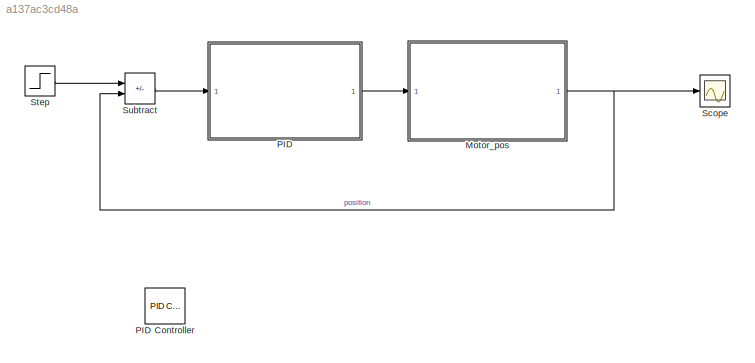
MODEL slx_a137ac3cd48a
KIND model
CONFIG AbsTol = auto
CONFIG EnableMultiTasking = off
CONFIG FixedStep = auto
CONFIG MaxStep = auto
CONFIG MinStep = auto
CONFIG RelTol = 1e-3
CONFIG SampleTimeConstraint = Unconstrained
CONFIG SolverName = ode45
CONFIG StartTime = 0.0
CONFIG StopTime = 5
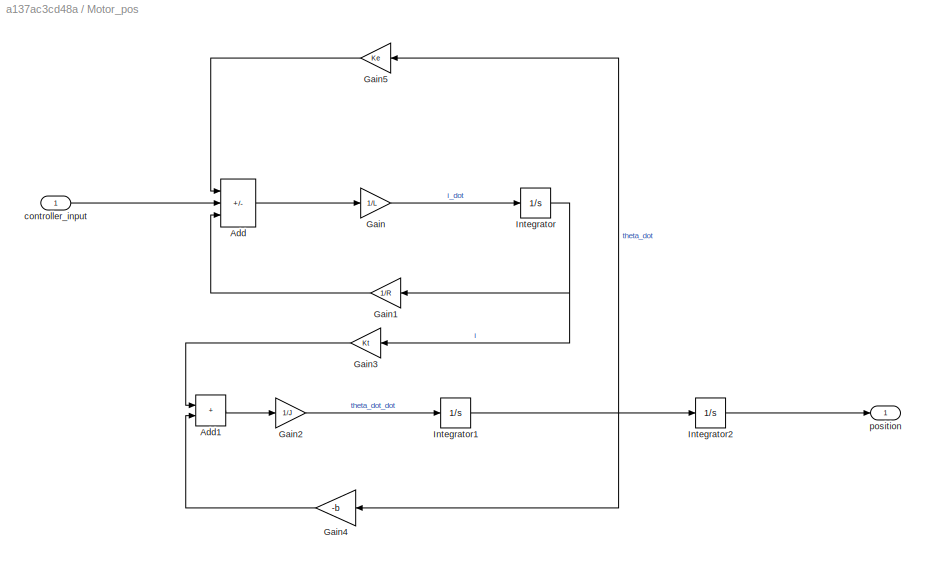
BLOCK [SubSystem] Motor_pos
  Ports = [1, 1]
  RequestExecContextInheritance = off
BLOCK [Sum] Motor_pos/Add
  IconShape = rectangular
  Inputs = -+-
  Ports = [3, 1]
BLOCK [Sum] Motor_pos/Add1
  IconShape = rectangular
  Ports = [2, 1]
BLOCK [Gain] Motor_pos/Gain
  Gain = 1/L
BLOCK [Gain] Motor_pos/Gain1
  Gain = 1/R
  NameLocation = top
BLOCK [Gain] Motor_pos/Gain2
  Gain = 1/J
BLOCK [Gain] Motor_pos/Gain3
  Gain = Kt
  NameLocation = top
BLOCK [Gain] Motor_pos/Gain4
  Gain = -b
  NameLocation = top
BLOCK [Gain] Motor_pos/Gain5
  Gain = Ke
  NameLocation = top
BLOCK [Integrator] Motor_pos/Integrator
  Ports = [1, 1]
BLOCK [Integrator] Motor_pos/Integrator1
  Ports = [1, 1]
BLOCK [Integrator] Motor_pos/Integrator2
  Ports = [1, 1]
BLOCK [Inport] Motor_pos/controller_input
BLOCK [Outport] Motor_pos/position
BLOCK [ModelReference] PID
  ModelNameDialog = PID0
  ModelReferenceVersion = 2.1
  Ports = [1, 1]
BLOCK [Reference] PID Controller  REF=pid_lib/PID Controller
  Commented = on
  Ports = [1, 1]
  SourceBlock = pid_lib/PID Controller
  SourceProductBaseCode = SL
  SourceType = PID 1dof
BLOCK [Scope] Scope
  Floating = off
  NumInputPorts = 1
  Ports = [1]
  ScopeSpecificationString = Simulink.scopes.TimeScopeBlockCfg('CurrentConfiguration', extmgr.ConfigurationSet(extmgr.Configuration('Core','General UI',true),extmgr.Configuration('Core','Source UI',true),extmgr.Configuration('Sources','WiredSimulink',true),extmgr.Configuration('Visuals','Time Domain',true,'SerializedDisplays',{struct('MinYLimReal','0.984','MaxYLimReal','1.02244','YLabelReal','','MinYLimMag','0.984','MaxYLimMa...<+1413ch>
BLOCK [Step] Step
  SampleTime = 0
BLOCK [Sum] Subtract
  IconShape = rectangular
  Inputs = +-
  Ports = [2, 1]
LINE Motor_pos/Add1:1 -> Motor_pos/Gain2:1
LINE Motor_pos/Add:1 -> Motor_pos/Gain:1
LINE Motor_pos/Gain1:1 -> Motor_pos/Add:3
LINE Motor_pos/Gain2:1 -> Motor_pos/Integrator1:1
LINE Motor_pos/Gain3:1 -> Motor_pos/Add1:1
LINE Motor_pos/Gain4:1 -> Motor_pos/Add1:2
LINE Motor_pos/Gain5:1 -> Motor_pos/Add:1
LINE Motor_pos/Gain:1 -> Motor_pos/Integrator:1
NET Motor_pos/Integrator1:1 -> Motor_pos/Gain4:1, Motor_pos/Gain5:1, Motor_pos/Integrator2:1
LINE Motor_pos/Integrator2:1 -> Motor_pos/position:1
NET Motor_pos/Integrator:1 -> Motor_pos/Gain1:1, Motor_pos/Gain3:1
LINE Motor_pos/controller_input:1 -> Motor_pos/Add:2
NET Motor_pos:1 -> Scope:1, Subtract:2
LINE PID:1 -> Motor_pos:1
LINE Step:1 -> Subtract:1
LINE Subtract:1 -> PID:1
note: NET lines group one-source signal fan-out (src -> all destinations, sorted); 1:1 wires keep LINE
